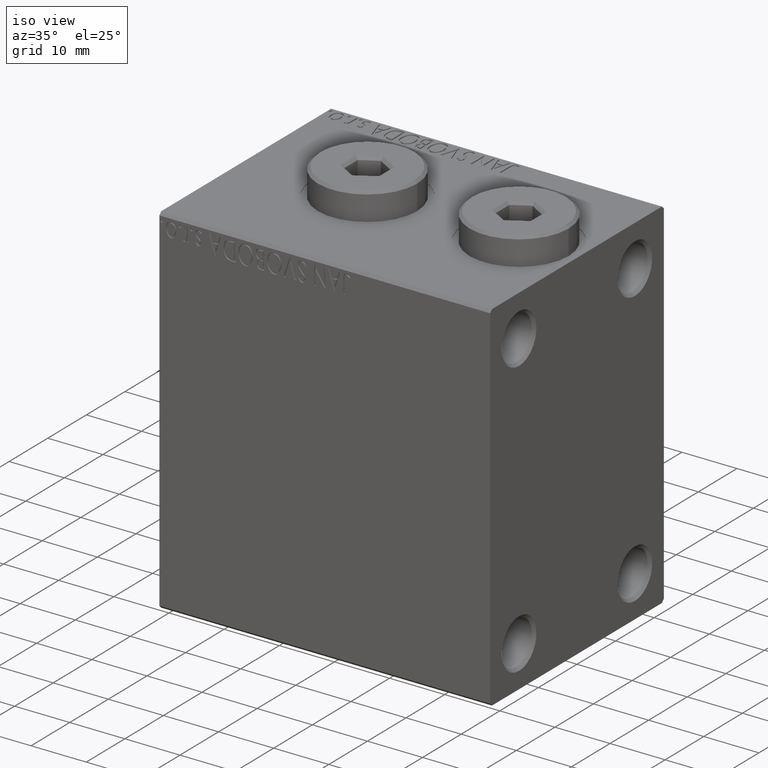
[diagram: clean part render]
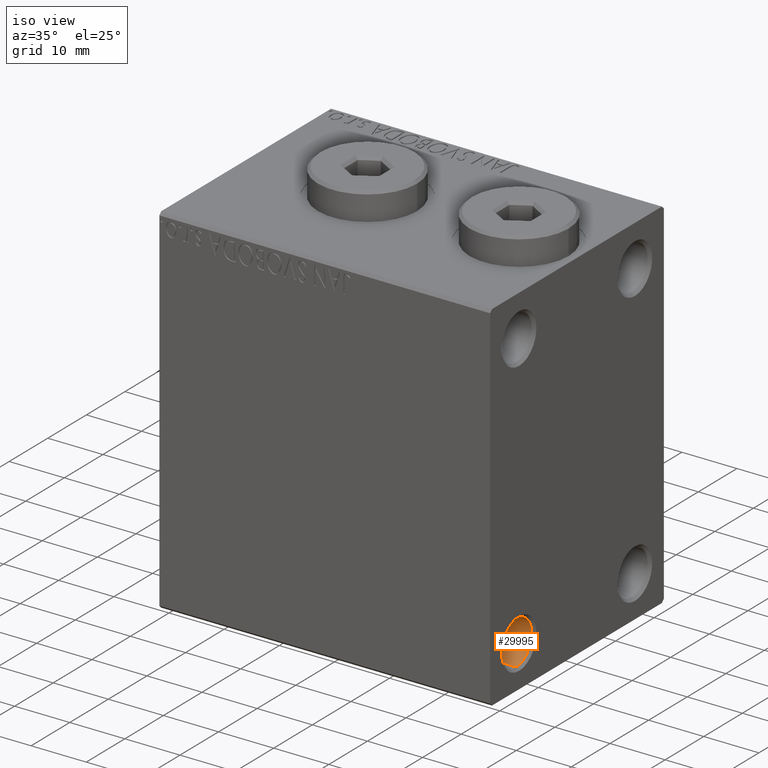
[diagram: same view with one face highlighted and labeled with its STEP entity id]
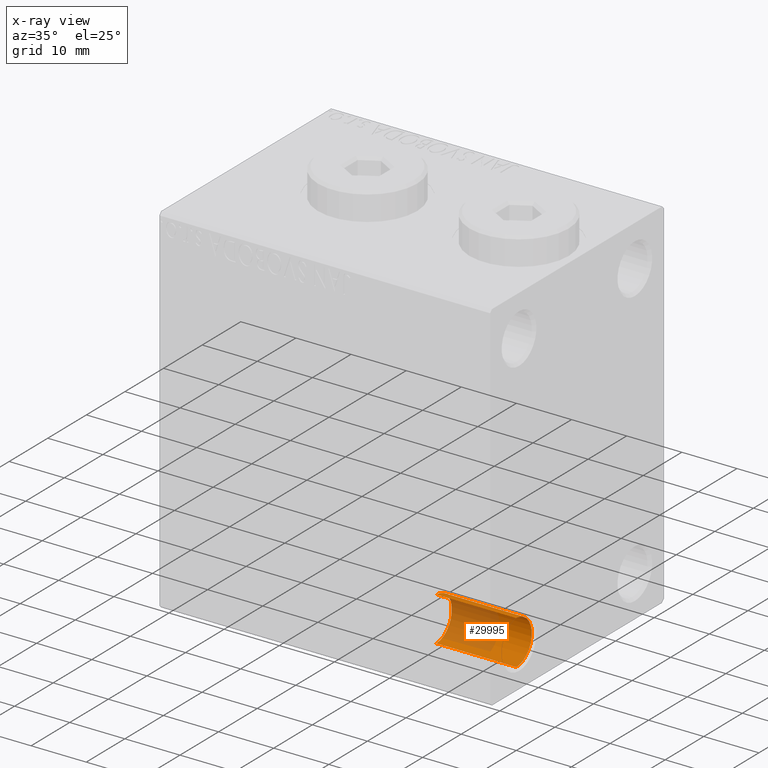
[diagram: x-ray of the same camera — body ghosted, the highlighted face saturated]
A machine part, iso view. The second image highlights one B-rep face of the part: STEP entity #29995.
The next image is the same camera in x-ray: the body ghosted, the highlighted face saturated — about 47% of this face is hidden behind the body in this view.
In plain terms, the highlighted cylindrical surface (edge-blend (fillet) strip) has radius 4 mm, axis along (1, 0, 0).
Its self-contained STEP definition (entity closure, byte-faithful):
#995 = LINE ( 'NONE', #40159, #22282 ) ;
#1895 = DIRECTION ( 'NONE',  ( 1.000000000000000000, -0.000000000000000000, -0.000000000000000000 ) ) ;
#7178 = DIRECTION ( 'NONE',  ( 1.000000000000000000, -0.000000000000000000, -0.000000000000000000 ) ) ;
#7448 = VERTEX_POINT ( 'NONE', #38292 ) ;
#8028 = AXIS2_PLACEMENT_3D ( 'NONE', #9028, #1895, #23067 ) ;
#8980 = AXIS2_PLACEMENT_3D ( 'NONE', #19762, #33835, #13089 ) ;
#9028 = CARTESIAN_POINT ( 'NONE',  ( 60.00000000000000000, -15.00000000000000000, -25.00000000000000000 ) ) ;
#11163 = VECTOR ( 'NONE', #7178, 1000.000000000000000 ) ;
#11166 = AXIS2_PLACEMENT_3D ( 'NONE', #45168, #16350, #30871 ) ;
#12253 = DIRECTION ( 'NONE',  ( 1.000000000000000000, -0.000000000000000000, -0.000000000000000000 ) ) ;
#13089 = DIRECTION ( 'NONE',  ( 0.000000000000000000, 0.000000000000000000, -1.000000000000000000 ) ) ;
#16350 = DIRECTION ( 'NONE',  ( -1.000000000000000000, 0.000000000000000000, 0.000000000000000000 ) ) ;
#18669 = CARTESIAN_POINT ( 'NONE',  ( 60.00000000000000000, -15.00000000000000000, -28.99999999999999645 ) ) ;
#19391 = FACE_OUTER_BOUND ( 'NONE', #34792, .T. ) ;
#19762 = CARTESIAN_POINT ( 'NONE',  ( 59.49999999999999289, -15.00000000000000000, -25.00000000000000000 ) ) ;
#20055 = CARTESIAN_POINT ( 'NONE',  ( 59.49999999999999289, -15.00000000000000000, -28.99999999999999645 ) ) ;
#22282 = VECTOR ( 'NONE', #12253, 1000.000000000000000 ) ;
#22382 = CYLINDRICAL_SURFACE ( 'NONE', #8028, 3.999999999999996447 ) ;
#22689 = ORIENTED_EDGE ( 'NONE', *, *, #45560, .F. ) ;
#23067 = DIRECTION ( 'NONE',  ( 0.000000000000000000, 0.000000000000000000, 1.000000000000000000 ) ) ;
#26019 = ORIENTED_EDGE ( 'NONE', *, *, #42039, .T. ) ;
#27212 = CARTESIAN_POINT ( 'NONE',  ( 45.00000000000000000, -15.00000000000000000, -21.00000000000000355 ) ) ;
#28557 = VERTEX_POINT ( 'NONE', #29398 ) ;
#28713 = ORIENTED_EDGE ( 'NONE', *, *, #43261, .F. ) ;
#29398 = CARTESIAN_POINT ( 'NONE',  ( 59.49999999999999289, -15.00000000000000000, -21.00000000000000355 ) ) ;
#29995 = ADVANCED_FACE ( 'NONE', ( #19391 ), #22382, .F. ) ;
#30073 = VERTEX_POINT ( 'NONE', #27212 ) ;
#30871 = DIRECTION ( 'NONE',  ( 0.000000000000000000, 0.000000000000000000, 1.000000000000000000 ) ) ;
#31537 = ORIENTED_EDGE ( 'NONE', *, *, #35975, .T. ) ;
#33835 = DIRECTION ( 'NONE',  ( -1.000000000000000000, 0.000000000000000000, 0.000000000000000000 ) ) ;
#34792 = EDGE_LOOP ( 'NONE', ( #31537, #26019, #28713, #22689 ) ) ;
#35975 = EDGE_CURVE ( 'NONE', #30073, #7448, #38399, .T. ) ;
#38292 = CARTESIAN_POINT ( 'NONE',  ( 45.00000000000000000, -15.00000000000000000, -28.99999999999999645 ) ) ;
#38399 = CIRCLE ( 'NONE', #11166, 3.999999999999996447 ) ;
#39223 = CIRCLE ( 'NONE', #8980, 3.999999999999996447 ) ;
#40159 = CARTESIAN_POINT ( 'NONE',  ( 60.00000000000000000, -15.00000000000000000, -21.00000000000000355 ) ) ;
#42039 = EDGE_CURVE ( 'NONE', #7448, #43045, #42684, .T. ) ;
#42684 = LINE ( 'NONE', #18669, #11163 ) ;
#43045 = VERTEX_POINT ( 'NONE', #20055 ) ;
#43261 = EDGE_CURVE ( 'NONE', #28557, #43045, #39223, .T. ) ;
#45168 = CARTESIAN_POINT ( 'NONE',  ( 45.00000000000000000, -15.00000000000000000, -25.00000000000000000 ) ) ;
#45560 = EDGE_CURVE ( 'NONE', #30073, #28557, #995, .T. ) ;